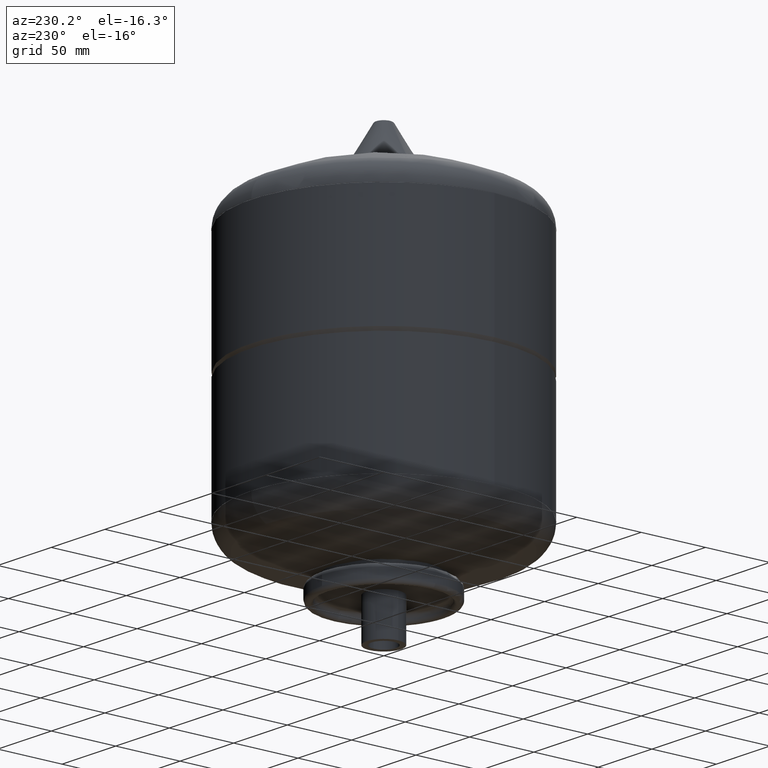
[diagram: clean part render]
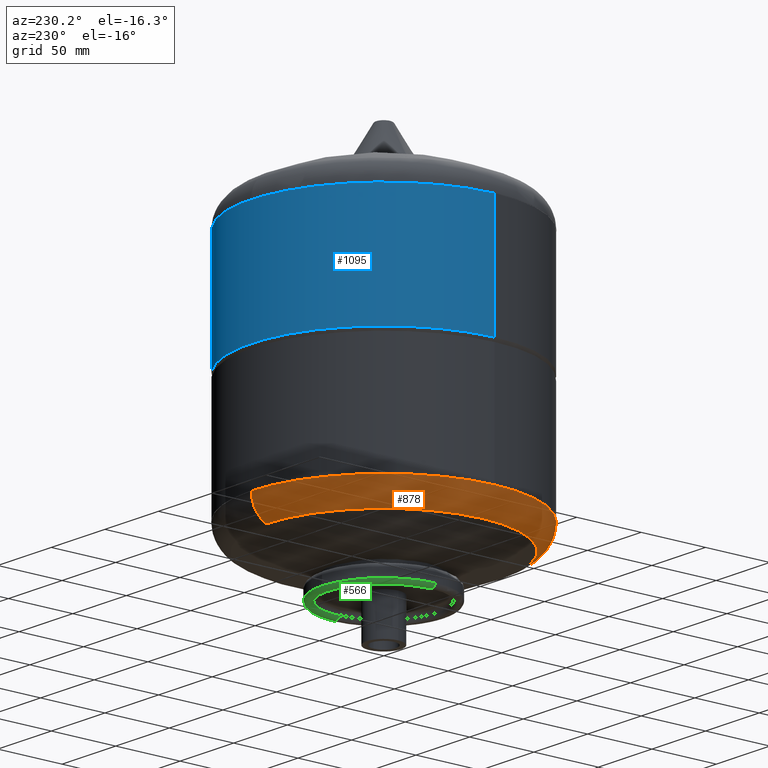
[diagram: same view with three faces highlighted in distinct colors, each labeled with its STEP entity id]
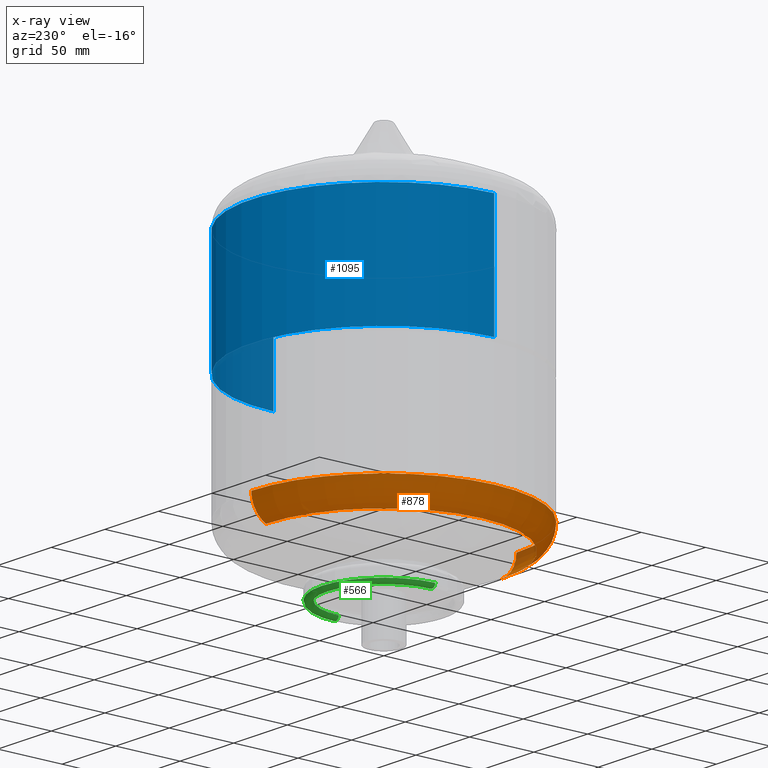
[diagram: x-ray of the same camera — body ghosted, the three highlighted faces saturated]
A machine part, auxiliary view with three faces highlighted in distinct colors.
The next image is the same camera in x-ray (body ghosted, the three faces saturated) — at least one of them is partly hidden behind the body in this view.
Their STEP definitions:

[orange] entity #878 — the highlighted toroidal blend (fillet) surface has major radius 82.5 mm and minor (blend) radius 20.5 mm.
#783=CARTESIAN_POINT('',(-102.999999999999990,4.781197E-017,76.739723783559427));
#784=VERTEX_POINT('',#783);
#808=CARTESIAN_POINT('',(-1.261345E-014,102.999999999999990,76.739723783559441));
#809=VERTEX_POINT('',#808);
#817=CARTESIAN_POINT('',(0.0,4.781197E-017,76.739723783559427));
#818=DIRECTION('',(0.0,0.0,1.0));
#819=DIRECTION('',(-1.0,0.0,0.0));
#820=AXIS2_PLACEMENT_3D('',#817,#818,#819);
#821=CIRCLE('',#820,102.999999999999990);
#822=EDGE_CURVE('',#809,#784,#821,.T.);
#827=CARTESIAN_POINT('',(0.0,4.781197E-017,76.739723783559441));
#828=DIRECTION('',(0.0,-1.836970E-016,1.0));
#829=DIRECTION('',(0.0,-1.0,0.0));
#830=AXIS2_PLACEMENT_3D('',#827,#828,#829);
#831=TOROIDAL_SURFACE('',#830,82.500000000000014,20.500000000000004);
#832=CARTESIAN_POINT('',(0.0,-102.999999999999990,76.739723783559413));
#833=VERTEX_POINT('',#832);
#834=CARTESIAN_POINT('',(0.0,-91.568364611260066,58.354545968883649));
#835=VERTEX_POINT('',#834);
#836=CARTESIAN_POINT('',(0.0,-82.500000000000014,76.739723783559427));
#837=DIRECTION('',(1.0,0.0,0.0));
#838=DIRECTION('',(0.0,-1.0,0.0));
#839=AXIS2_PLACEMENT_3D('',#836,#837,#838);
#840=CIRCLE('',#839,20.500000000000004);
#841=EDGE_CURVE('',#833,#835,#840,.T.);
#842=ORIENTED_EDGE('',*,*,#841,.F.);
#843=CARTESIAN_POINT('',(0.0,4.781197E-017,76.739723783559427));
#844=DIRECTION('',(0.0,0.0,1.0));
#845=DIRECTION('',(-1.0,0.0,0.0));
#846=AXIS2_PLACEMENT_3D('',#843,#844,#845);
#847=CIRCLE('',#846,102.999999999999990);
#848=EDGE_CURVE('',#784,#833,#847,.T.);
#849=ORIENTED_EDGE('',*,*,#848,.F.);
#850=ORIENTED_EDGE('',*,*,#822,.F.);
#851=CARTESIAN_POINT('',(-1.121352E-014,91.568364611260066,58.354545968883677));
#852=VERTEX_POINT('',#851);
#853=CARTESIAN_POINT('',(-1.010300E-014,82.500000000000014,76.739723783559455));
#854=DIRECTION('',(-1.0,0.0,0.0));
#855=DIRECTION('',(0.0,1.0,0.0));
#856=AXIS2_PLACEMENT_3D('',#853,#854,#855);
#857=CIRCLE('',#856,20.500000000000004);
#858=EDGE_CURVE('',#809,#852,#857,.T.);
#859=ORIENTED_EDGE('',*,*,#858,.T.);
#860=CARTESIAN_POINT('',(-91.568364611260066,3.425114E-015,58.354545968883663));
#861=VERTEX_POINT('',#860);
#862=CARTESIAN_POINT('',(0.0,3.425114E-015,58.354545968883663));
#863=DIRECTION('',(0.0,0.0,1.0));
#864=DIRECTION('',(-1.0,0.0,0.0));
#865=AXIS2_PLACEMENT_3D('',#862,#863,#864);
#866=CIRCLE('',#865,91.568364611260066);
#867=EDGE_CURVE('',#852,#861,#866,.T.);
#868=ORIENTED_EDGE('',*,*,#867,.T.);
#869=CARTESIAN_POINT('',(0.0,3.425114E-015,58.354545968883663));
#870=DIRECTION('',(0.0,0.0,1.0));
#871=DIRECTION('',(-1.0,0.0,0.0));
#872=AXIS2_PLACEMENT_3D('',#869,#870,#871);
#873=CIRCLE('',#872,91.568364611260066);
#874=EDGE_CURVE('',#861,#835,#873,.T.);
#875=ORIENTED_EDGE('',*,*,#874,.T.);
#876=EDGE_LOOP('',(#842,#849,#850,#859,#868,#875));
#877=FACE_OUTER_BOUND('',#876,.T.);
#878=ADVANCED_FACE('',(#877),#831,.T.);

[blue] entity #1095 — the highlighted cylindrical surface (partial cylindrical patch) has radius 103 mm, axis along (0, 0, 1).
#951=CARTESIAN_POINT('',(102.999999999999970,0.0,168.499999999999970));
#952=VERTEX_POINT('',#951);
#961=CARTESIAN_POINT('',(-102.999999999999990,-1.261345E-014,168.499999999999970));
#962=VERTEX_POINT('',#961);
#1035=CARTESIAN_POINT('',(102.999999999999990,0.0,258.000000000000060));
#1036=VERTEX_POINT('',#1035);
#1037=CARTESIAN_POINT('',(102.999999999999990,0.0,258.000000000000060));
#1038=DIRECTION('',(0.0,0.0,-1.0));
#1039=VECTOR('',#1038,89.500000000000085);
#1040=LINE('',#1037,#1039);
#1041=EDGE_CURVE('',#1036,#952,#1040,.T.);
#1043=CARTESIAN_POINT('',(-102.999999999999990,-1.261345E-014,258.000000000000060));
#1044=VERTEX_POINT('',#1043);
#1052=CARTESIAN_POINT('',(-102.999999999999990,-1.261345E-014,258.000000000000060));
#1053=DIRECTION('',(0.0,0.0,-1.0));
#1054=VECTOR('',#1053,89.500000000000085);
#1055=LINE('',#1052,#1054);
#1056=EDGE_CURVE('',#1044,#962,#1055,.T.);
#1068=CARTESIAN_POINT('',(0.0,0.0,258.000000000000060));
#1069=DIRECTION('',(0.0,0.0,1.0));
#1070=DIRECTION('',(1.0,0.0,0.0));
#1071=AXIS2_PLACEMENT_3D('',#1068,#1069,#1070);
#1072=CIRCLE('',#1071,102.999999999999990);
#1073=EDGE_CURVE('',#1036,#1044,#1072,.T.);
#1078=CARTESIAN_POINT('',(0.0,0.0,215.500000000000000));
#1079=DIRECTION('',(0.0,0.0,1.0));
#1080=DIRECTION('',(1.0,0.0,0.0));
#1081=AXIS2_PLACEMENT_3D('',#1078,#1079,#1080);
#1082=CYLINDRICAL_SURFACE('',#1081,102.999999999999990);
#1083=ORIENTED_EDGE('',*,*,#1041,.T.);
#1084=CARTESIAN_POINT('',(0.0,0.0,168.499999999999970));
#1085=DIRECTION('',(0.0,0.0,1.0));
#1086=DIRECTION('',(1.0,0.0,0.0));
#1087=AXIS2_PLACEMENT_3D('',#1084,#1085,#1086);
#1088=CIRCLE('',#1087,102.999999999999970);
#1089=EDGE_CURVE('',#952,#962,#1088,.T.);
#1090=ORIENTED_EDGE('',*,*,#1089,.T.);
#1091=ORIENTED_EDGE('',*,*,#1056,.F.);
#1092=ORIENTED_EDGE('',*,*,#1073,.F.);
#1093=EDGE_LOOP('',(#1083,#1090,#1091,#1092));
#1094=FACE_OUTER_BOUND('',#1093,.T.);
#1095=ADVANCED_FACE('',(#1094),#1082,.T.);

[green] entity #566 — the highlighted toroidal blend (fillet) surface has major radius 45 mm and minor (blend) radius 3 mm.
#131=CARTESIAN_POINT('',(0.0,48.0,27.999999999999993));
#132=VERTEX_POINT('',#131);
#141=CARTESIAN_POINT('',(-48.000000000000007,0.0,28.0));
#142=VERTEX_POINT('',#141);
#143=CARTESIAN_POINT('',(0.0,0.0,28.0));
#144=DIRECTION('',(0.0,0.0,-1.0));
#145=DIRECTION('',(0.0,1.0,0.0));
#146=AXIS2_PLACEMENT_3D('',#143,#144,#145);
#147=CIRCLE('',#146,48.000000000000007);
#148=EDGE_CURVE('',#142,#132,#147,.T.);
#408=CARTESIAN_POINT('',(-42.000000000000014,0.0,28.0));
#409=VERTEX_POINT('',#408);
#419=CARTESIAN_POINT('',(0.0,42.0,27.999999999999996));
#420=VERTEX_POINT('',#419);
#421=CARTESIAN_POINT('',(0.0,0.0,28.0));
#422=DIRECTION('',(0.0,0.0,-1.0));
#423=DIRECTION('',(0.0,1.0,0.0));
#424=AXIS2_PLACEMENT_3D('',#421,#422,#423);
#425=CIRCLE('',#424,42.000000000000014);
#426=EDGE_CURVE('',#409,#420,#425,.T.);
#428=CARTESIAN_POINT('',(42.000000000000014,-5.143347E-015,28.0));
#429=VERTEX_POINT('',#428);
#430=CARTESIAN_POINT('',(0.0,0.0,28.0));
#431=DIRECTION('',(0.0,0.0,-1.0));
#432=DIRECTION('',(0.0,1.0,0.0));
#433=AXIS2_PLACEMENT_3D('',#430,#431,#432);
#434=CIRCLE('',#433,42.000000000000014);
#435=EDGE_CURVE('',#420,#429,#434,.T.);
#470=CARTESIAN_POINT('',(-45.000000000000007,0.0,28.0));
#471=DIRECTION('',(0.0,1.0,0.0));
#472=DIRECTION('',(-1.0,0.0,0.0));
#473=AXIS2_PLACEMENT_3D('',#470,#471,#472);
#474=CIRCLE('',#473,3.000000000000000);
#475=EDGE_CURVE('',#409,#142,#474,.T.);
#484=CARTESIAN_POINT('',(48.000000000000007,-5.878110E-015,28.0));
#485=VERTEX_POINT('',#484);
#486=CARTESIAN_POINT('',(45.000000000000007,-5.510729E-015,28.0));
#487=DIRECTION('',(0.0,-1.0,0.0));
#488=DIRECTION('',(1.0,0.0,0.0));
#489=AXIS2_PLACEMENT_3D('',#486,#487,#488);
#490=CIRCLE('',#489,3.000000000000000);
#491=EDGE_CURVE('',#429,#485,#490,.T.);
#547=CARTESIAN_POINT('',(0.0,0.0,28.0));
#548=DIRECTION('',(0.0,-1.045403E-016,-1.0));
#549=DIRECTION('',(-1.0,0.0,0.0));
#550=AXIS2_PLACEMENT_3D('',#547,#548,#549);
#551=TOROIDAL_SURFACE('',#550,45.000000000000007,3.000000000000000);
#552=ORIENTED_EDGE('',*,*,#475,.T.);
#553=ORIENTED_EDGE('',*,*,#148,.T.);
#554=CARTESIAN_POINT('',(0.0,0.0,28.0));
#555=DIRECTION('',(0.0,0.0,-1.0));
#556=DIRECTION('',(0.0,1.0,0.0));
#557=AXIS2_PLACEMENT_3D('',#554,#555,#556);
#558=CIRCLE('',#557,48.000000000000007);
#559=EDGE_CURVE('',#132,#485,#558,.T.);
#560=ORIENTED_EDGE('',*,*,#559,.T.);
#561=ORIENTED_EDGE('',*,*,#491,.F.);
#562=ORIENTED_EDGE('',*,*,#435,.F.);
#563=ORIENTED_EDGE('',*,*,#426,.F.);
#564=EDGE_LOOP('',(#552,#553,#560,#561,#562,#563));
#565=FACE_OUTER_BOUND('',#564,.T.);
#566=ADVANCED_FACE('',(#565),#551,.T.);